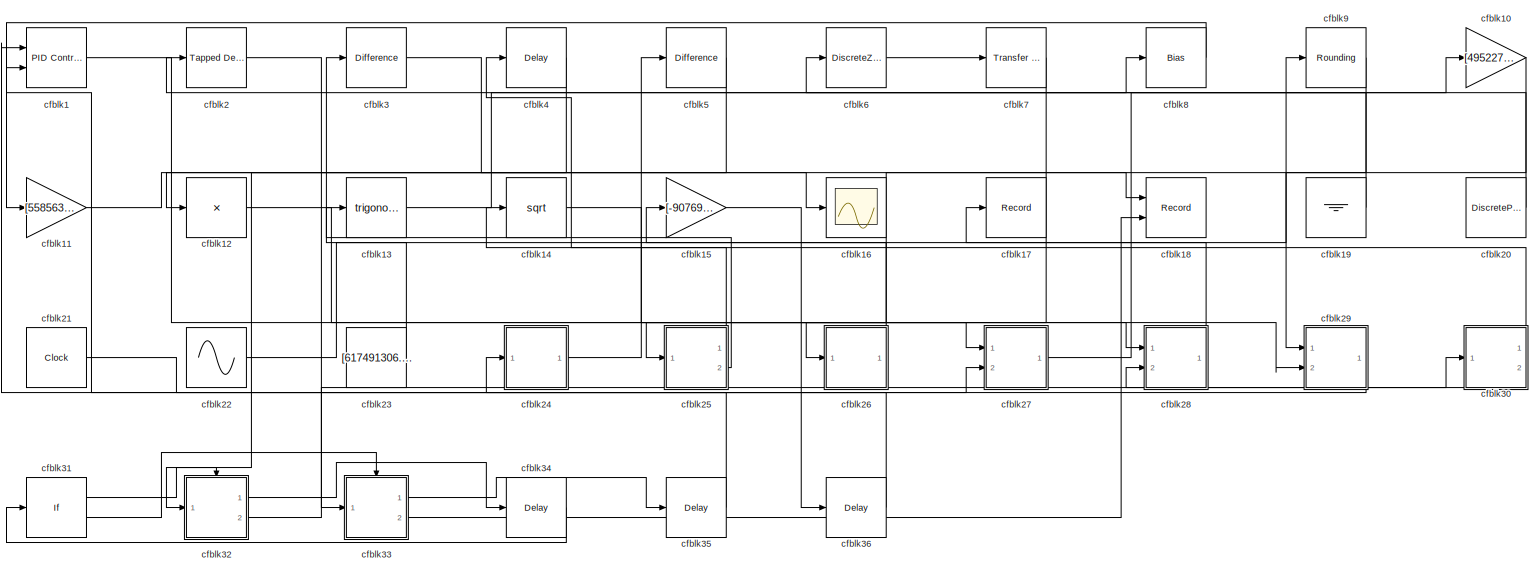
[diagram: root canvas - part 1/1, most of the canvas]
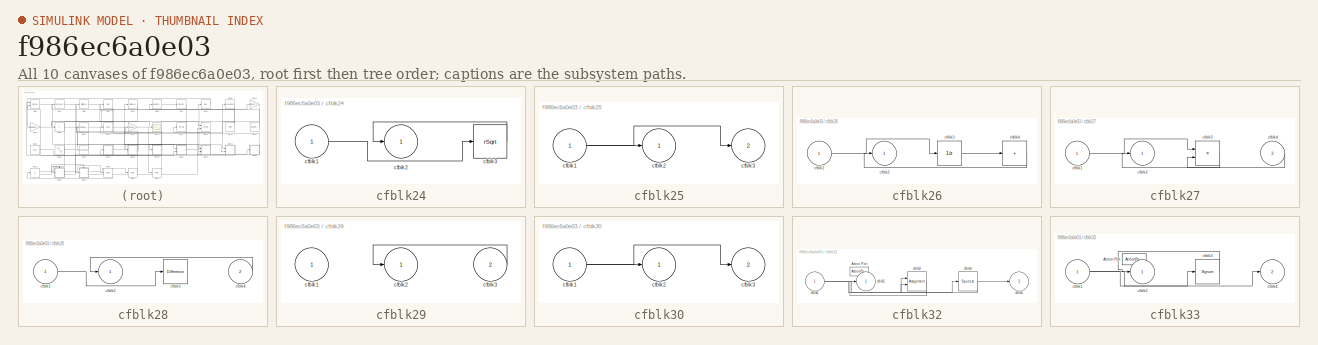
[diagram: thumbnail index - all 10 canvases of the model, root first then tree order]
MODEL slx_f986ec6a0e03
KIND model
CONFIG AbsTol = auto
CONFIG EnableMultiTasking = off
CONFIG FixedStep = auto
CONFIG MaxStep = auto
CONFIG MinStep = auto
CONFIG RelTol = 1e-3
CONFIG SampleTimeConstraint = Unconstrained
CONFIG SolverName = VariableStepAuto
CONFIG StartTime = 0.0
CONFIG StopTime = 10.0
BLOCK [Reference] cfblk1  REF=slpidlib/PID Controller (2DOF)
  Ports = [2, 1]
  SourceBlock = slpidlib/PID Controller (2DOF)
  SourceProductBaseCode = SL
  SourceType = PID 2dof
BLOCK [Gain] cfblk10
  Gain = [495227501.527476]
BLOCK [Gain] cfblk11
  Gain = [558563490.180403]
BLOCK [Product] cfblk12
  Inputs = *
  Ports = [1, 1]
BLOCK [Trigonometry] cfblk13
  Ports = [1, 1]
BLOCK [Sqrt] cfblk14
BLOCK [Gain] cfblk15
  Gain = [-907690334.072236]
BLOCK [Scope] cfblk16
  Floating = off
  NumInputPorts = 1
  Ports = [1]
BLOCK [Record] cfblk17
  FileSettingsInternal = {"entries":[{"content":{"excelSettings":{"content":{},"type":"Streamout.ExcelSettings"}},"type":"Streamout.FileSettingStorage","uuid":"672d0555-d3cd-4d77-8b5e-19a679b4cae2"}],"packageUris":["http://schema.mathworks.com/mf0/streamout_blocks/R2020a"],"version":"1.0"}
  Ports = [1]
  SignalsInternal = {"entries":[{"content":{"signals":[{"content":{"blockPath":["sampleModel150/cfblk17"],"channel":[],"dimensions":[1],"domain":"sampleModel150/cfblk17","lineColor":"#d95319","plots":[1],"port":1,"sid":[""],"signalID":5507,"signalName":"cfblk28"},"type":"RecordBlkView.Signal","uuid":"1f320dc9-607d-43e0-a521-9b41aae8f132"}]},"type":"RecordBlkView.InputSignals","uuid":"e13a2260-4f26-4d0b-921e-963a009d8...<+97ch>
  VisualizationBindings = {"sparklinesplugin":{"info":[{"bindingParametersList":[],"subplotID":1}]}}
BLOCK [Record] cfblk18
  CompatibilityTag = XY
  FileSettingsInternal = {"entries":[{"content":{"excelSettings":{"content":{},"type":"Streamout.ExcelSettings"}},"type":"Streamout.FileSettingStorage","uuid":"6775af82-7f64-4392-9994-5bbe186e2674"}],"packageUris":["http://schema.mathworks.com/mf0/streamout_blocks/R2020a"],"version":"1.0"}
  Layout = [1 1]
  Ports = [2]
  SignalsInternal = {"entries":[{"content":{"signals":[{"content":{"blockPath":["sampleModel150/cfblk18"],"channel":[],"dimensions":[1],"domain":"sampleModel150/cfblk18","lineColor":"#a2142f","plots":[1],"port":1,"sid":[""],"signalID":5511,"signalName":"cfblk11"},"type":"RecordBlkView.Signal","uuid":"b5857043-3715-424c-a1c8-591a23fcb294"},{"content":{"blockPath":["sampleModel150/cfblk18"],"channel":[],"dimensions":[1...<+385ch>
  VisualizationBindings = {"xyplotplugin":{"info":[{"series":[{"bindingParametersList":[{"parameter":"X-Axis","signalID":5511,"signalName":"cfblk11"},{"parameter":"Y-Axis","signalID":5515,"signalName":"cfblk33:2"}],"seriesID":963}],"subplotID":1}]}}
BLOCK [Ground] cfblk19
BLOCK [Reference] cfblk2  REF=simulink/Discrete/Tapped Delay
  Ports = [1, 1]
  SourceBlock = simulink/Discrete/Tapped Delay
  SourceProductBaseCode = SL
  SourceType = Tapped Delay Line
BLOCK [DiscretePulseGenerator] cfblk20
  Amplitude = [733493101.116678]
  Period = [14386343.663439]
  PhaseDelay = [4.000000]
  Ports = [0, 1]
  PulseType = Time based
  PulseWidth = 5
BLOCK [Clock] cfblk21
BLOCK [Sin] cfblk22
  Amplitude = [642150146.750644]
  Bias = [-667682070.182158]
  Ports = [0, 1]
  SampleTime = 0
BLOCK [Constant] cfblk23
  SampleTime = 1
  Value = [617491306.806258]
BLOCK [SubSystem] cfblk24
  Ports = [1, 1]
  RequestExecContextInheritance = off
BLOCK [Inport] cfblk24/cfblk1
BLOCK [Outport] cfblk24/cfblk2
BLOCK [Sqrt] cfblk24/cfblk3
  AlgorithmType = Newton-Raphson
  Operator = rSqrt
BLOCK [SubSystem] cfblk25
  Ports = [1, 2]
  RequestExecContextInheritance = off
BLOCK [Inport] cfblk25/cfblk1
BLOCK [Outport] cfblk25/cfblk2
BLOCK [Outport] cfblk25/cfblk3
  Port = 2
BLOCK [SubSystem] cfblk26
  Ports = [1, 1]
  RequestExecContextInheritance = off
BLOCK [Inport] cfblk26/cfblk1
BLOCK [Outport] cfblk26/cfblk2
BLOCK [UnitDelay] cfblk26/cfblk3
  HasFrameUpgradeWarning = on
BLOCK [Sum] cfblk26/cfblk4
  IconShape = rectangular
  Inputs = +
  Ports = [1, 1]
BLOCK [SubSystem] cfblk27
  Ports = [2, 1]
  RequestExecContextInheritance = off
BLOCK [Inport] cfblk27/cfblk1
BLOCK [Outport] cfblk27/cfblk2
BLOCK [Product] cfblk27/cfblk3
  Ports = [2, 1]
BLOCK [Inport] cfblk27/cfblk4
  Port = 2
BLOCK [SubSystem] cfblk28
  Ports = [2, 1]
  RequestExecContextInheritance = off
BLOCK [Inport] cfblk28/cfblk1
BLOCK [Outport] cfblk28/cfblk2
BLOCK [Reference] cfblk28/cfblk3  REF=simulink/Discrete/Difference
  Ports = [1, 1]
  SourceBlock = simulink/Discrete/Difference
  SourceProductBaseCode = SL
  SourceType = Difference
BLOCK [Inport] cfblk28/cfblk4
  Port = 2
BLOCK [SubSystem] cfblk29
  Ports = [2, 1]
  RequestExecContextInheritance = off
BLOCK [Inport] cfblk29/cfblk1
BLOCK [Outport] cfblk29/cfblk2
BLOCK [Inport] cfblk29/cfblk3
  Port = 2
BLOCK [Reference] cfblk3  REF=simulink/Discrete/Difference
  Ports = [1, 1]
  SourceBlock = simulink/Discrete/Difference
  SourceProductBaseCode = SL
  SourceType = Difference
BLOCK [SubSystem] cfblk30
  Ports = [1, 2]
  RequestExecContextInheritance = off
BLOCK [Inport] cfblk30/cfblk1
BLOCK [Outport] cfblk30/cfblk2
BLOCK [Outport] cfblk30/cfblk3
  Port = 2
BLOCK [If] cfblk31
  IfExpression = u1 >= 0
  Ports = [1, 2]
  SampleTime = 1
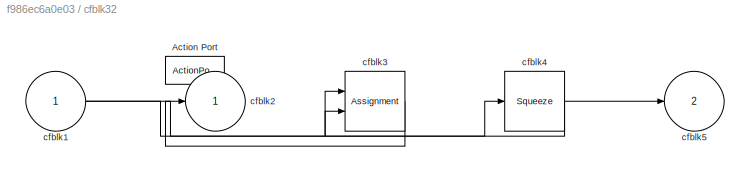
BLOCK [SubSystem] cfblk32
  Ports = [1, 2, 0, 0, 0, 0, 0, 1]
  RequestExecContextInheritance = off
  TreatAsAtomicUnit = on
BLOCK [ActionPort] cfblk32/Action Port
  ActionPortLabel = if(u1 >= 0)
BLOCK [Inport] cfblk32/cfblk1
BLOCK [Outport] cfblk32/cfblk2
BLOCK [Assignment] cfblk32/cfblk3
  DiagnosticForDimensions = Warning
  IndexOptions = Index vector (dialog)
  Indices = 1
  OutputSizes = 1
  Ports = [2, 1]
BLOCK [Squeeze] cfblk32/cfblk4
BLOCK [Outport] cfblk32/cfblk5
  Port = 2
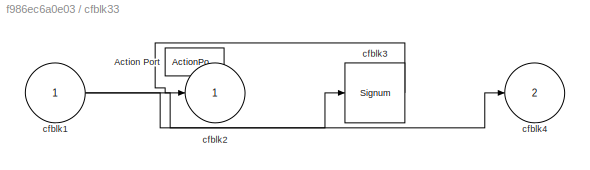
BLOCK [SubSystem] cfblk33
  Ports = [1, 2, 0, 0, 0, 0, 0, 1]
  RequestExecContextInheritance = off
  TreatAsAtomicUnit = on
BLOCK [ActionPort] cfblk33/Action Port
  ActionPortLabel = else
BLOCK [Inport] cfblk33/cfblk1
BLOCK [Outport] cfblk33/cfblk2
BLOCK [Signum] cfblk33/cfblk3
BLOCK [Outport] cfblk33/cfblk4
  Port = 2
BLOCK [Delay] cfblk34
  InputPortMap = u0
  Ports = [1, 1]
  SampleTime = 1
BLOCK [Delay] cfblk35
  InputPortMap = u0
  Ports = [1, 1]
  SampleTime = 1
BLOCK [Delay] cfblk36
  InputPortMap = u0
  Ports = [1, 1]
  SampleTime = 1
BLOCK [Delay] cfblk4
  InputPortMap = u0
  Ports = [1, 1]
  SampleTime = 1
BLOCK [Reference] cfblk5  REF=simulink/Discrete/Difference
  Ports = [1, 1]
  SourceBlock = simulink/Discrete/Difference
  SourceProductBaseCode = SL
  SourceType = Difference
BLOCK [DiscreteZeroPole] cfblk6
  Gain = 1
  Poles = [0 0.5]
BLOCK [Reference] cfblk7  REF=simulink/Discrete/Transfer Fcn
First Order
  Ports = [1, 1]
  SourceBlock = simulink/Discrete/Transfer Fcn\nFirst Order
  SourceProductBaseCode = SL
  SourceType = First Order Transfer Fcn
BLOCK [Bias] cfblk8
  Bias = [-195929688.116275]
  SaturateOnIntegerOverflow = off
BLOCK [Rounding] cfblk9
LINE cfblk10:1 -> cfblk26:1
LINE cfblk11:1 -> cfblk18:1
LINE cfblk12:1 -> cfblk28:1
LINE cfblk13:1 -> cfblk8:1
LINE cfblk14:1 -> cfblk27:1
LINE cfblk15:1 -> cfblk36:1
LINE cfblk19:1 -> cfblk2:1
LINE cfblk1:1 -> cfblk29:2
LINE cfblk20:1 -> cfblk6:1
LINE cfblk21:1 -> cfblk27:2
LINE cfblk22:1 -> cfblk9:1
LINE cfblk23:1 -> cfblk3:1
LINE cfblk24/cfblk1:1 -> cfblk24/cfblk3:1
LINE cfblk24/cfblk3:1 -> cfblk24/cfblk2:1
LINE cfblk24:1 -> cfblk5:1
NET cfblk25/cfblk1:1 -> cfblk25/cfblk2:1, cfblk25/cfblk3:1
LINE cfblk25:1 -> cfblk4:1
LINE cfblk25:2 -> cfblk13:1
LINE cfblk26/cfblk1:1 -> cfblk26/cfblk3:1
LINE cfblk26/cfblk3:1 -> cfblk26/cfblk4:1
LINE cfblk26/cfblk4:1 -> cfblk26/cfblk2:1
LINE cfblk26:1 -> cfblk15:1
LINE cfblk27/cfblk1:1 -> cfblk27/cfblk3:1
LINE cfblk27/cfblk3:1 -> cfblk27/cfblk2:1
LINE cfblk27/cfblk4:1 -> cfblk27/cfblk3:2
LINE cfblk27:1 -> cfblk10:1
LINE cfblk28/cfblk1:1 -> cfblk28/cfblk3:1
LINE cfblk28/cfblk4:1 -> cfblk28/cfblk2:1
LINE cfblk28:1 -> cfblk17:1
LINE cfblk29/cfblk3:1 -> cfblk29/cfblk2:1
LINE cfblk29:1 -> cfblk24:1
LINE cfblk2:1 -> cfblk33:1
NET cfblk30/cfblk1:1 -> cfblk30/cfblk2:1, cfblk30/cfblk3:1
LINE cfblk30:1 -> cfblk14:1
LINE cfblk30:2 -> cfblk28:2
LINE cfblk31:1 -> cfblk32:ifaction
LINE cfblk31:2 -> cfblk33:ifaction
NET cfblk32/cfblk1:1 -> cfblk32/cfblk3:1, cfblk32/cfblk4:1
LINE cfblk32/cfblk3:1 -> cfblk32/cfblk2:1
NET cfblk32/cfblk4:1 -> cfblk32/cfblk3:2, cfblk32/cfblk5:1
LINE cfblk32:1 -> cfblk34:1
LINE cfblk32:2 -> cfblk30:1
NET cfblk33/cfblk1:1 -> cfblk33/cfblk3:1, cfblk33/cfblk4:1
LINE cfblk33/cfblk3:1 -> cfblk33/cfblk2:1
LINE cfblk33:1 -> cfblk35:1
LINE cfblk33:2 -> cfblk18:2
LINE cfblk34:1 -> cfblk31:1
LINE cfblk35:1 -> cfblk1:1
LINE cfblk36:1 -> cfblk1:2
LINE cfblk3:1 -> cfblk16:1
LINE cfblk4:1 -> cfblk12:1
LINE cfblk5:1 -> cfblk32:1
LINE cfblk6:1 -> cfblk7:1
LINE cfblk7:1 -> cfblk25:1
LINE cfblk8:1 -> cfblk11:1
LINE cfblk9:1 -> cfblk29:1
note: NET lines group one-source signal fan-out (src -> all destinations, sorted); 1:1 wires keep LINE
